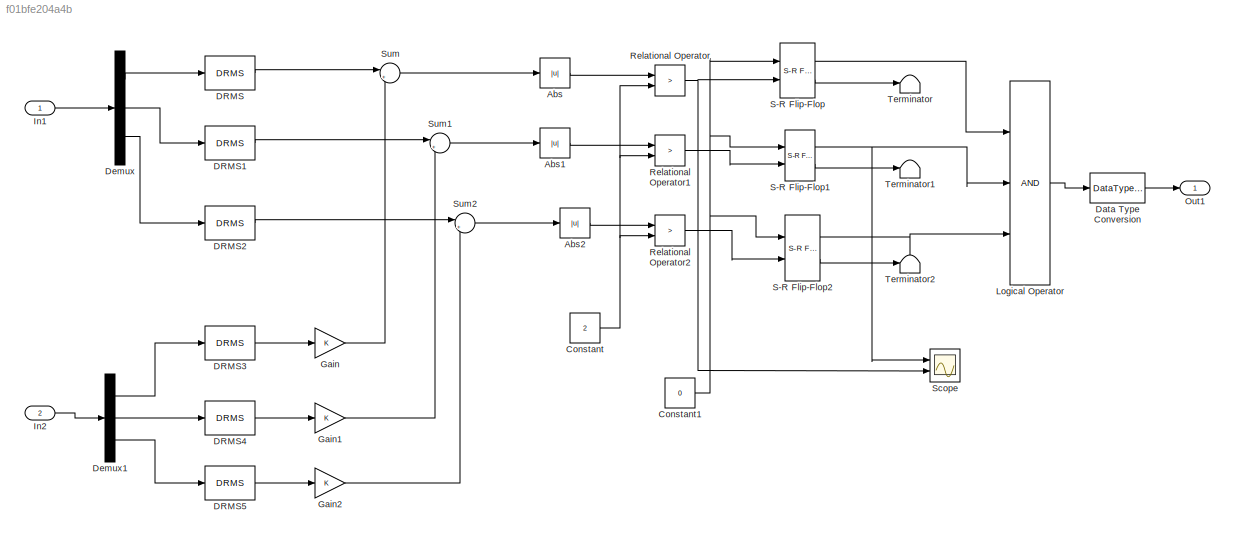
MODEL slx_f01bfe204a4b
KIND model
CONFIG AbsTol = auto
CONFIG EnableMultiTasking = off
CONFIG FixedStep = auto
CONFIG MaxStep = auto
CONFIG MinStep = auto
CONFIG RelTol = 1e-3
CONFIG SampleTimeConstraint = Unconstrained
CONFIG Solver = VariableStepAuto
CONFIG SolverName = VariableStepAuto
CONFIG StartTime = 0.0
CONFIG StopTime = 2
BLOCK [Abs] Abs
  SaturateOnIntegerOverflow = off
BLOCK [Abs] Abs1
  SaturateOnIntegerOverflow = off
BLOCK [Abs] Abs2
  SaturateOnIntegerOverflow = off
BLOCK [Constant] Constant
  Value = 2
BLOCK [Constant] Constant1
  Value = 0
BLOCK [Reference] DRMS  REF=sdolib/RMS Blocks/DRMS
  Ports = [1, 1]
  SourceBlock = sdolib/RMS Blocks/DRMS
  SourceProductBaseCode = SO
  SourceProductName = Simulink Design Optimization
  SourceType = Discrete RMS Value Block
BLOCK [Reference] DRMS1  REF=sdolib/RMS Blocks/DRMS
  Ports = [1, 1]
  SourceBlock = sdolib/RMS Blocks/DRMS
  SourceProductBaseCode = SO
  SourceProductName = Simulink Design Optimization
  SourceType = Discrete RMS Value Block
BLOCK [Reference] DRMS2  REF=sdolib/RMS Blocks/DRMS
  Ports = [1, 1]
  SourceBlock = sdolib/RMS Blocks/DRMS
  SourceProductBaseCode = SO
  SourceProductName = Simulink Design Optimization
  SourceType = Discrete RMS Value Block
BLOCK [Reference] DRMS3  REF=sdolib/RMS Blocks/DRMS
  Ports = [1, 1]
  SourceBlock = sdolib/RMS Blocks/DRMS
  SourceProductBaseCode = SO
  SourceProductName = Simulink Design Optimization
  SourceType = Discrete RMS Value Block
BLOCK [Reference] DRMS4  REF=sdolib/RMS Blocks/DRMS
  Ports = [1, 1]
  SourceBlock = sdolib/RMS Blocks/DRMS
  SourceProductBaseCode = SO
  SourceProductName = Simulink Design Optimization
  SourceType = Discrete RMS Value Block
BLOCK [Reference] DRMS5  REF=sdolib/RMS Blocks/DRMS
  Ports = [1, 1]
  SourceBlock = sdolib/RMS Blocks/DRMS
  SourceProductBaseCode = SO
  SourceProductName = Simulink Design Optimization
  SourceType = Discrete RMS Value Block
BLOCK [DataTypeConversion] Data Type Conversion
  OutDataTypeStr = double
  RndMeth = Floor
  SaturateOnIntegerOverflow = off
BLOCK [Demux] Demux
  DisplayOption = bar
  Outputs = 3
  Ports = [1, 3]
BLOCK [Demux] Demux1
  DisplayOption = bar
  Outputs = 3
  Ports = [1, 3]
BLOCK [Gain] Gain
  OutDataTypeStr = Inherit: Inherit via internal rule
  ParamDataTypeStr = Inherit: Inherit via internal rule
  SaturateOnIntegerOverflow = off
BLOCK [Gain] Gain1
  OutDataTypeStr = Inherit: Inherit via internal rule
  ParamDataTypeStr = Inherit: Inherit via internal rule
  SaturateOnIntegerOverflow = off
BLOCK [Gain] Gain2
  OutDataTypeStr = Inherit: Inherit via internal rule
  ParamDataTypeStr = Inherit: Inherit via internal rule
  SaturateOnIntegerOverflow = off
BLOCK [Inport] In1
  IconDisplay = Port number
BLOCK [Inport] In2
  IconDisplay = Port number
  Port = 2
BLOCK [Logic] Logical Operator
  AllPortsSameDT = off
  Inputs = 3
  OutDataTypeStr = boolean
  Ports = [3, 1]
BLOCK [Outport] Out1
  IconDisplay = Port number
BLOCK [RelationalOperator] Relational Operator
  InputSameDT = off
  Operator = >
  OutDataTypeStr = boolean
  Ports = [2, 1]
  RndMeth = Simplest
BLOCK [RelationalOperator] Relational Operator1
  InputSameDT = off
  Operator = >
  OutDataTypeStr = boolean
  Ports = [2, 1]
  RndMeth = Simplest
BLOCK [RelationalOperator] Relational Operator2
  InputSameDT = off
  Operator = >
  OutDataTypeStr = boolean
  Ports = [2, 1]
  RndMeth = Simplest
BLOCK [Reference] S-R Flip-Flop  REF=simulink_extras/Flip Flops/S-R
Flip-Flop
  Ports = [2, 2]
  SourceBlock = simulink_extras/Flip Flops/S-R\nFlip-Flop
  SourceProductBaseCode = SL
  SourceProductName = Simulink
  SourceType = SRFlipFlop
BLOCK [Reference] S-R Flip-Flop1  REF=simulink_extras/Flip Flops/S-R
Flip-Flop
  Ports = [2, 2]
  SourceBlock = simulink_extras/Flip Flops/S-R\nFlip-Flop
  SourceProductBaseCode = SL
  SourceProductName = Simulink
  SourceType = SRFlipFlop
BLOCK [Reference] S-R Flip-Flop2  REF=simulink_extras/Flip Flops/S-R
Flip-Flop
  Ports = [2, 2]
  SourceBlock = simulink_extras/Flip Flops/S-R\nFlip-Flop
  SourceProductBaseCode = SL
  SourceProductName = Simulink
  SourceType = SRFlipFlop
BLOCK [Scope] Scope
  NumInputPorts = 2
  Ports = [2]
  ScopeSpecificationString = Simulink.scopes.TimeScopeBlockCfg('CurrentConfiguration', extmgr.ConfigurationSet(extmgr.Configuration('Core','General UI',true),extmgr.Configuration('Core','Source UI',true),extmgr.Configuration('Sources','WiredSimulink',true),extmgr.Configuration('Visuals','Time Domain',true,'SerializedDisplays',{struct('MinYLimReal','-10','MaxYLimReal','10','YLabelReal','','MinYLimMag','0','MaxYLimMag','10','Le...<+1333ch>
BLOCK [Sum] Sum
  IconShape = round
  InputSameDT = off
  Inputs = |++
  OutDataTypeStr = Inherit: Inherit via internal rule
  Ports = [2, 1]
  SaturateOnIntegerOverflow = off
BLOCK [Sum] Sum1
  IconShape = round
  InputSameDT = off
  Inputs = |++
  OutDataTypeStr = Inherit: Inherit via internal rule
  Ports = [2, 1]
  SaturateOnIntegerOverflow = off
BLOCK [Sum] Sum2
  IconShape = round
  InputSameDT = off
  Inputs = |++
  OutDataTypeStr = Inherit: Inherit via internal rule
  Ports = [2, 1]
  SaturateOnIntegerOverflow = off
BLOCK [Terminator] Terminator
BLOCK [Terminator] Terminator1
BLOCK [Terminator] Terminator2
LINE Abs1:1 -> Relational Operator1:1
LINE Abs2:1 -> Relational Operator2:1
LINE Abs:1 -> Relational Operator:1
NET Constant1:1 -> S-R Flip-Flop1:1, S-R Flip-Flop2:1, S-R Flip-Flop:1
NET Constant:1 -> Relational Operator1:2, Relational Operator2:2, Relational Operator:2
LINE DRMS1:1 -> Sum1:1
LINE DRMS2:1 -> Sum2:1
LINE DRMS3:1 -> Gain:1
LINE DRMS4:1 -> Gain1:1
LINE DRMS5:1 -> Gain2:1
LINE DRMS:1 -> Sum:1
LINE Data Type Conversion:1 -> Out1:1
LINE Demux1:1 -> DRMS3:1
LINE Demux1:2 -> DRMS4:1
LINE Demux1:3 -> DRMS5:1
LINE Demux:1 -> DRMS:1
LINE Demux:2 -> DRMS1:1
LINE Demux:3 -> DRMS2:1
LINE Gain1:1 -> Sum1:2
LINE Gain2:1 -> Sum2:2
LINE Gain:1 -> Sum:2
LINE In1:1 -> Demux:1
LINE In2:1 -> Demux1:1
LINE Logical Operator:1 -> Data Type Conversion:1
LINE Relational Operator1:1 -> S-R Flip-Flop1:2
LINE Relational Operator2:1 -> S-R Flip-Flop2:2
NET Relational Operator:1 -> S-R Flip-Flop:2, Scope:2
NET S-R Flip-Flop1:1 -> Logical Operator:2, Scope:1
LINE S-R Flip-Flop1:2 -> Terminator1:1
LINE S-R Flip-Flop2:1 -> Logical Operator:3
LINE S-R Flip-Flop2:2 -> Terminator2:1
LINE S-R Flip-Flop:1 -> Logical Operator:1
LINE S-R Flip-Flop:2 -> Terminator:1
LINE Sum1:1 -> Abs1:1
LINE Sum2:1 -> Abs2:1
LINE Sum:1 -> Abs:1
note: NET lines group one-source signal fan-out (src -> all destinations, sorted); 1:1 wires keep LINE
